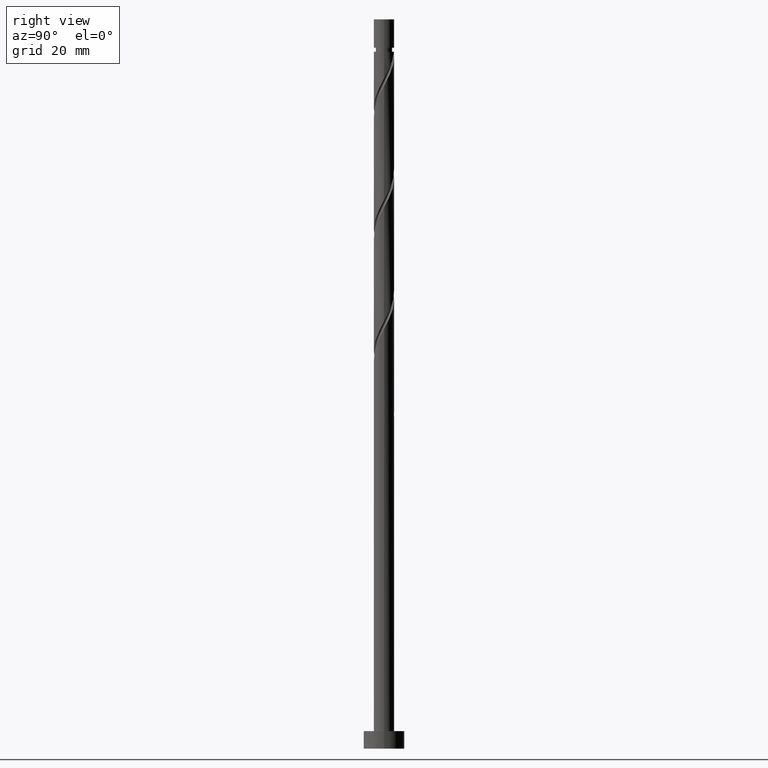
[diagram: clean part render]
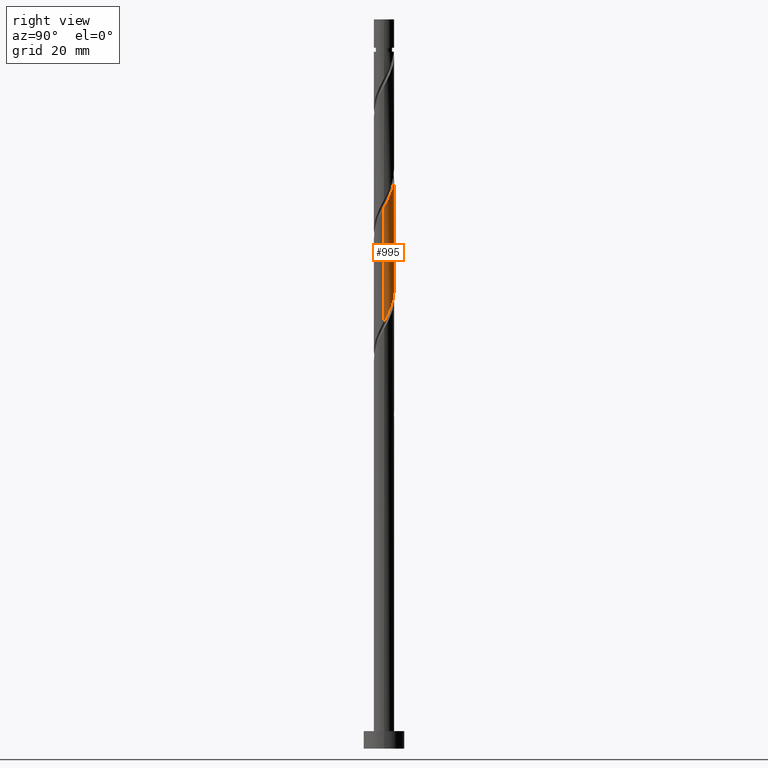
[diagram: same view with one face highlighted and labeled with its STEP entity id]
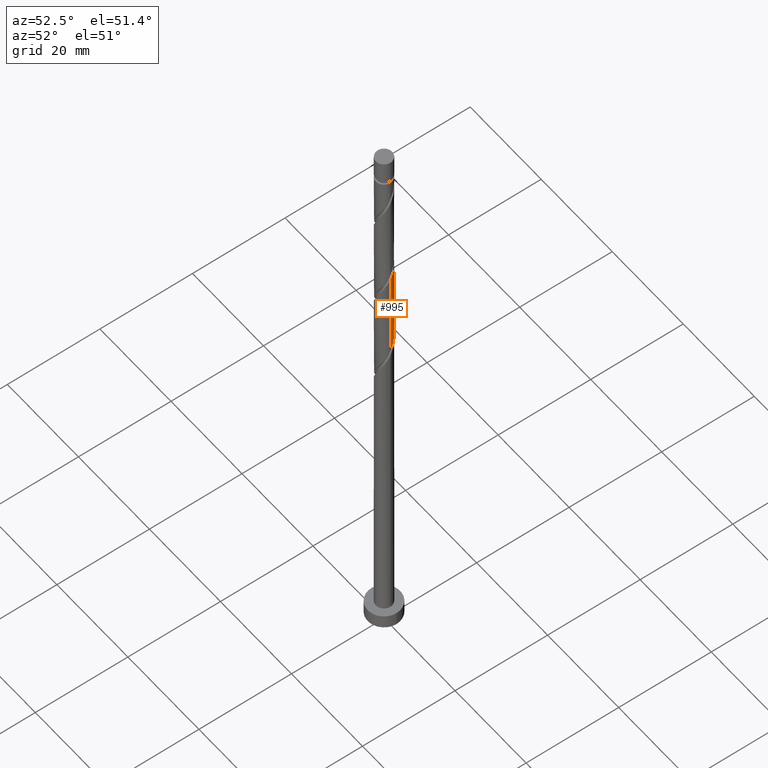
[diagram: same view with one face highlighted and labeled with its STEP entity id]
A machine part, right view. The second image highlights one B-rep face of the part: STEP entity #995.
A second angle (auxiliary view) of the same face is appended — the face is thin or edge-on in the first view.
In plain terms, the highlighted cylindrical surface (edge-blend (fillet) strip) has radius 1.75 mm, axis along (-0, -0, -1).
Its self-contained STEP definition (entity closure, byte-faithful):
#2 = CARTESIAN_POINT ( 'NONE',  ( -1.749999999999999556, 0.1758816176703656420, 83.31989234590389515 ) ) ;
#49 = VECTOR ( 'NONE', #920, 1000.000000000000000 ) ;
#55 = ORIENTED_EDGE ( 'NONE', *, *, #649, .F. ) ;
#58 = DIRECTION ( 'NONE',  ( -0.000000000000000000, -0.000000000000000000, -1.000000000000000000 ) ) ;
#62 = CARTESIAN_POINT ( 'NONE',  ( 1.750000000000000000, 2.143131898507867804E-16, 125.0000000000000000 ) ) ;
#66 = CARTESIAN_POINT ( 'NONE',  ( 1.750000000000000000, 2.578813678711391292E-15, 73.23753025464507971 ) ) ;
#88 = CARTESIAN_POINT ( 'NONE',  ( -1.750000000000003553, 0.09970404053125707378, 102.9684142824972639 ) ) ;
#97 = CARTESIAN_POINT ( 'NONE',  ( 1.750000000000002887, 0.1758816176703640044, 93.07556328044573490 ) ) ;
#107 = CARTESIAN_POINT ( 'NONE',  ( 1.592157774964679806, 0.7263150966485003579, 74.65606114650813652 ) ) ;
#138 = CARTESIAN_POINT ( 'NONE',  ( -1.182770515741390360, 1.289788318714682136, 80.90606114650810810 ) ) ;
#161 = FACE_OUTER_BOUND ( 'NONE', #1254, .T. ) ;
#166 = VERTEX_POINT ( 'NONE', #526 ) ;
#184 = EDGE_CURVE ( 'NONE', #166, #813, #1193, .T. ) ;
#224 = CARTESIAN_POINT ( 'NONE',  ( 1.289788318714682358, 1.182770515741389916, 75.69772781317479371 ) ) ;
#312 = CARTESIAN_POINT ( 'NONE',  ( -0.6198749181438977240, 1.659843315075376413, 99.13522781317482213 ) ) ;
#318 = CARTESIAN_POINT ( 'NONE',  ( 1.387052916738143127, 1.102455872546620474, 94.96856114650813652 ) ) ;
#325 = CARTESIAN_POINT ( 'NONE',  ( 0.9784881147446430338, 1.477120764882747128, 96.01022781317482213 ) ) ;
#353 = CARTESIAN_POINT ( 'NONE',  ( 1.738675734985620558, 0.1987628953608115701, 73.61439447984147932 ) ) ;
#432 = ORIENTED_EDGE ( 'NONE', *, *, #184, .F. ) ;
#435 = CARTESIAN_POINT ( 'NONE',  ( 1.750000000000003109, 1.349379250488509398E-15, 92.74125870503786473 ) ) ;
#455 = CARTESIAN_POINT ( 'NONE',  ( -0.3482456029873169379, 1.715000000000003411, 98.61439447984145090 ) ) ;
#472 = CARTESIAN_POINT ( 'NONE',  ( 1.707194785046614260, 0.4741420785523609571, 74.13522781317480792 ) ) ;
#479 = VERTEX_POINT ( 'NONE', #839 ) ;
#502 = CARTESIAN_POINT ( 'NONE',  ( -1.659843315075372860, 0.6198749181438970579, 82.46856114650816494 ) ) ;
#508 = VECTOR ( 'NONE', #58, 1000.000000000000000 ) ;
#520 = VERTEX_POINT ( 'NONE', #882 ) ;
#526 = CARTESIAN_POINT ( 'NONE',  ( -1.749999999999999778, 2.061551632690792561E-15, 83.65419692131173690 ) ) ;
#534 = LINE ( 'NONE', #756, #508 ) ;
#562 = LINE ( 'NONE', #62, #49 ) ;
#589 = CARTESIAN_POINT ( 'NONE',  ( 1.749999999999999556, 0.09970404053126105670, 73.42704134385238035 ) ) ;
#638 =( BOUNDED_CURVE ( )  B_SPLINE_CURVE ( 2, ( #435, #97, #670, #936, #1160, #318, #785, #325, #792, #1286, #682, #1166, #455, #312, #927, #1035, #1151, #1522, #778, #662, #1147, #88, #1483 ),
 .UNSPECIFIED., .F., .T. ) 
 B_SPLINE_CURVE_WITH_KNOTS ( ( 3, 2, 2, 2, 2, 2, 2, 2, 2, 2, 2, 3 ),
 ( 0.4295322023138553047, 0.4375000000000000000, 0.4499999999999999556, 0.4625000000000000222, 0.4749999999999999778, 0.4875000000000000444, 0.5000000000000000000, 0.5124999999999999556, 0.5250000000000000222, 0.5374999999999999778, 0.5500000000000000444, 0.5545322023138552492 ),
 .UNSPECIFIED. ) 
 CURVE ( )  GEOMETRIC_REPRESENTATION_ITEM ( )  RATIONAL_B_SPLINE_CURVE ( ( 0.9039174447099436183, 0.9019565955404731383, 0.9090909090909216062, 0.8978984914501375592, 0.9090909090909216062, 0.8978984914501375592, 0.9090909090909216062, 0.8978984914501375592, 0.9090909090909216062, 0.8978984914501375592, 0.9090909090909216062, 0.8978984914501375592, 0.9090909090909216062, 0.8978984914501375592, 0.9090909090909216062, 0.8978984914501375592, 0.9090909090909216062, 0.8978984914501375592, 0.9090909090909216062, 0.8978984914501375592, 0.9090909090909216062, 0.9050328050005858049, 0.9039174447099437293 ) ) 
 REPRESENTATION_ITEM ( '' )  );
#649 = EDGE_CURVE ( 'NONE', #479, #166, #534, .T. ) ;
#662 = CARTESIAN_POINT ( 'NONE',  ( -1.707194785046616925, 0.4741420785523623449, 102.2602278131748221 ) ) ;
#670 = CARTESIAN_POINT ( 'NONE',  ( 1.715000000000003411, 0.3482456029873171044, 93.40606114650813652 ) ) ;
#682 = CARTESIAN_POINT ( 'NONE',  ( 0.1987628953608130966, 1.738675734985623000, 97.57272781317479371 ) ) ;
#689 = CARTESIAN_POINT ( 'NONE',  ( 0.3482456029873175485, 1.715000000000000080, 77.78106114650815073 ) ) ;
#706 = ORIENTED_EDGE ( 'NONE', *, *, #1514, .T. ) ;
#743 = CYLINDRICAL_SURFACE ( 'NONE', #1291, 1.750000000000000000 ) ;
#756 = CARTESIAN_POINT ( 'NONE',  ( -1.750000000000000000, 0.000000000000000000, 125.0000000000000000 ) ) ;
#778 = CARTESIAN_POINT ( 'NONE',  ( -1.592157774964681805, 0.7263150966485025783, 101.7393944798414651 ) ) ;
#785 = CARTESIAN_POINT ( 'NONE',  ( 1.182770515741392581, 1.289788318714684356, 95.48939447984147932 ) ) ;
#792 = CARTESIAN_POINT ( 'NONE',  ( 0.7263150966485028004, 1.592157774964681805, 96.53106114650812231 ) ) ;
#799 = CARTESIAN_POINT ( 'NONE',  ( -0.4741420785523612347, 1.707194785046613816, 79.34356114650816494 ) ) ;
#813 = VERTEX_POINT ( 'NONE', #66 ) ;
#815 = CARTESIAN_POINT ( 'NONE',  ( 1.102455872546618920, 1.387052916738139796, 76.21856114650813652 ) ) ;
#839 = CARTESIAN_POINT ( 'NONE',  ( -1.750000000000003109, -6.971792794190630607E-16, 103.1579253717045361 ) ) ;
#852 = EDGE_CURVE ( 'NONE', #520, #479, #638, .T. ) ;
#859 = CARTESIAN_POINT ( 'NONE',  ( -0.9784881147446411465, 1.477120764882745352, 80.38522781317480792 ) ) ;
#882 = CARTESIAN_POINT ( 'NONE',  ( 1.750000000000003109, 1.349379250488509398E-15, 92.74125870503787894 ) ) ;
#920 = DIRECTION ( 'NONE',  ( -0.000000000000000000, -0.000000000000000000, -1.000000000000000000 ) ) ;
#927 = CARTESIAN_POINT ( 'NONE',  ( -0.8611653953452588217, 1.523448115906759437, 99.65606114650813652 ) ) ;
#935 = CARTESIAN_POINT ( 'NONE',  ( 0.6198749181438975020, 1.659843315075372860, 77.26022781317483634 ) ) ;
#936 = CARTESIAN_POINT ( 'NONE',  ( 1.659843315075376635, 0.6198749181438973910, 93.92689447984147932 ) ) ;
#995 = ADVANCED_FACE ( 'NONE', ( #161 ), #743, .T. ) ;
#1035 = CARTESIAN_POINT ( 'NONE',  ( -1.102455872546620474, 1.387052916738142905, 100.1768944798415077 ) ) ;
#1048 = CARTESIAN_POINT ( 'NONE',  ( -0.1987628953608119586, 1.738675734985620558, 78.82272781317482213 ) ) ;
#1056 = CARTESIAN_POINT ( 'NONE',  ( 0.8611653953452581556, 1.523448115906756328, 76.73939447984147932 ) ) ;
#1065 = CARTESIAN_POINT ( 'NONE',  ( 1.750000000000000000, 2.578813678711391292E-15, 73.23753025464507971 ) ) ;
#1147 = CARTESIAN_POINT ( 'NONE',  ( -1.738675734985623000, 0.1987628953608126248, 102.7810611465081223 ) ) ;
#1151 = CARTESIAN_POINT ( 'NONE',  ( -1.289788318714684356, 1.182770515741392581, 100.6977278131747937 ) ) ;
#1160 = CARTESIAN_POINT ( 'NONE',  ( 1.523448115906759437, 0.8611653953452583776, 94.44772781317479371 ) ) ;
#1166 = CARTESIAN_POINT ( 'NONE',  ( -0.07661628783073667903, 1.770156684924629964, 98.09356114650815073 ) ) ;
#1184 = CARTESIAN_POINT ( 'NONE',  ( 1.477120764882745352, 0.9784881147446405913, 75.17689447984146511 ) ) ;
#1185 = CARTESIAN_POINT ( 'NONE',  ( 0.000000000000000000, 0.000000000000000000, 125.0000000000000000 ) ) ;
#1193 =( BOUNDED_CURVE ( )  B_SPLINE_CURVE ( 2, ( #1490, #2, #1337, #502, #1220, #1353, #138, #859, #1345, #799, #1048, #1293, #689, #935, #1056, #815, #224, #1184, #107, #472, #353, #589, #1065 ),
 .UNSPECIFIED., .F., .T. ) 
 B_SPLINE_CURVE_WITH_KNOTS ( ( 3, 2, 2, 2, 2, 2, 2, 2, 2, 2, 2, 3 ),
 ( 0.6795322023138553602, 0.6875000000000000000, 0.6999999999999999556, 0.7125000000000000222, 0.7249999999999999778, 0.7375000000000000444, 0.7500000000000000000, 0.7624999999999999556, 0.7750000000000000222, 0.7874999999999999778, 0.8000000000000000444, 0.8045322023138550271 ),
 .UNSPECIFIED. ) 
 CURVE ( )  GEOMETRIC_REPRESENTATION_ITEM ( )  RATIONAL_B_SPLINE_CURVE ( ( 0.9039174447099371790, 0.9019565955404666990, 0.9090909090909150558, 0.8978984914501311199, 0.9090909090909150558, 0.8978984914501311199, 0.9090909090909150558, 0.8978984914501311199, 0.9090909090909150558, 0.8978984914501311199, 0.9090909090909150558, 0.8978984914501311199, 0.9090909090909150558, 0.8978984914501311199, 0.9090909090909150558, 0.8978984914501311199, 0.9090909090909150558, 0.8978984914501311199, 0.9090909090909150558, 0.8978984914501311199, 0.9090909090909150558, 0.9050328050005795877, 0.9039174447099374010 ) ) 
 REPRESENTATION_ITEM ( '' )  );
#1220 = CARTESIAN_POINT ( 'NONE',  ( -1.523448115906756328, 0.8611653953452578225, 81.94772781317480792 ) ) ;
#1233 = DIRECTION ( 'NONE',  ( -1.000000000000000000, 0.000000000000000000, 0.000000000000000000 ) ) ;
#1254 = EDGE_LOOP ( 'NONE', ( #1512, #706, #432, #55 ) ) ;
#1286 = CARTESIAN_POINT ( 'NONE',  ( 0.4741420785523627335, 1.707194785046616925, 97.05189447984147932 ) ) ;
#1291 = AXIS2_PLACEMENT_3D ( 'NONE', #1185, #1424, #1233 ) ;
#1293 = CARTESIAN_POINT ( 'NONE',  ( 0.07661628783073730353, 1.770156684924627077, 78.30189447984147932 ) ) ;
#1337 = CARTESIAN_POINT ( 'NONE',  ( -1.715000000000000080, 0.3482456029873171599, 82.98939447984147932 ) ) ;
#1345 = CARTESIAN_POINT ( 'NONE',  ( -0.7263150966485011351, 1.592157774964679806, 79.86439447984147932 ) ) ;
#1353 = CARTESIAN_POINT ( 'NONE',  ( -1.387052916738139796, 1.102455872546618476, 81.42689447984146511 ) ) ;
#1424 = DIRECTION ( 'NONE',  ( -0.000000000000000000, -0.000000000000000000, -1.000000000000000000 ) ) ;
#1483 = CARTESIAN_POINT ( 'NONE',  ( -1.750000000000003109, -6.971792794190630607E-16, 103.1579253717045361 ) ) ;
#1490 = CARTESIAN_POINT ( 'NONE',  ( -1.750000000000000000, 2.061551632690792561E-15, 83.65419692131173690 ) ) ;
#1512 = ORIENTED_EDGE ( 'NONE', *, *, #852, .F. ) ;
#1514 = EDGE_CURVE ( 'NONE', #520, #813, #562, .T. ) ;
#1522 = CARTESIAN_POINT ( 'NONE',  ( -1.477120764882747572, 0.9784881147446428118, 101.2185611465081507 ) ) ;